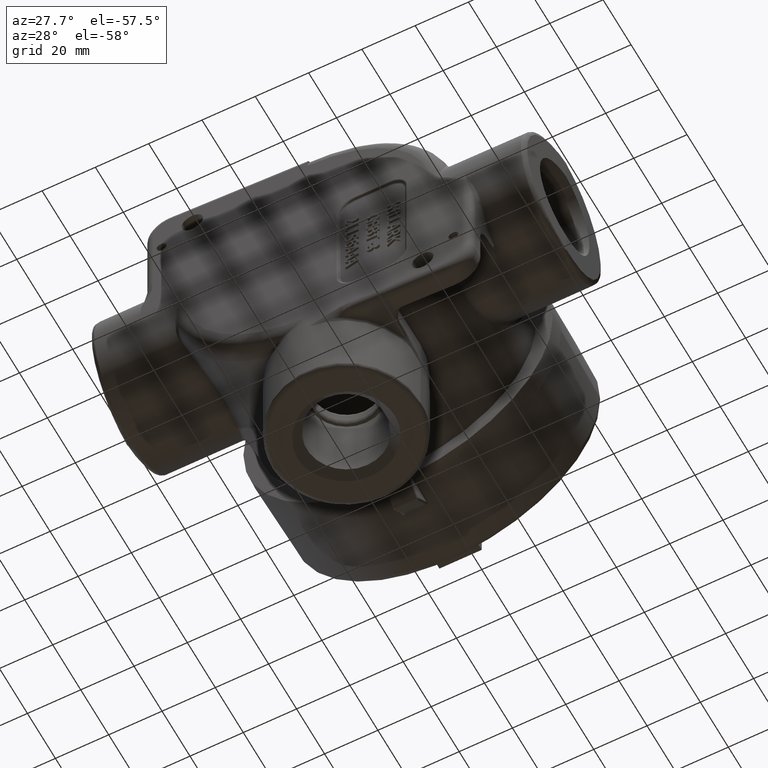
[diagram: clean part render]
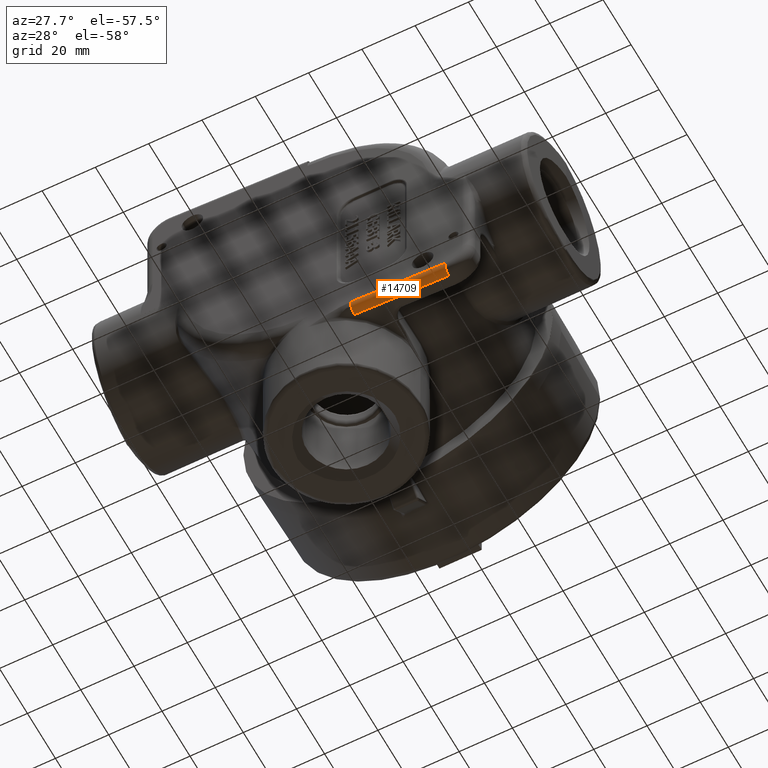
[diagram: same view with one face highlighted and labeled with its STEP entity id]
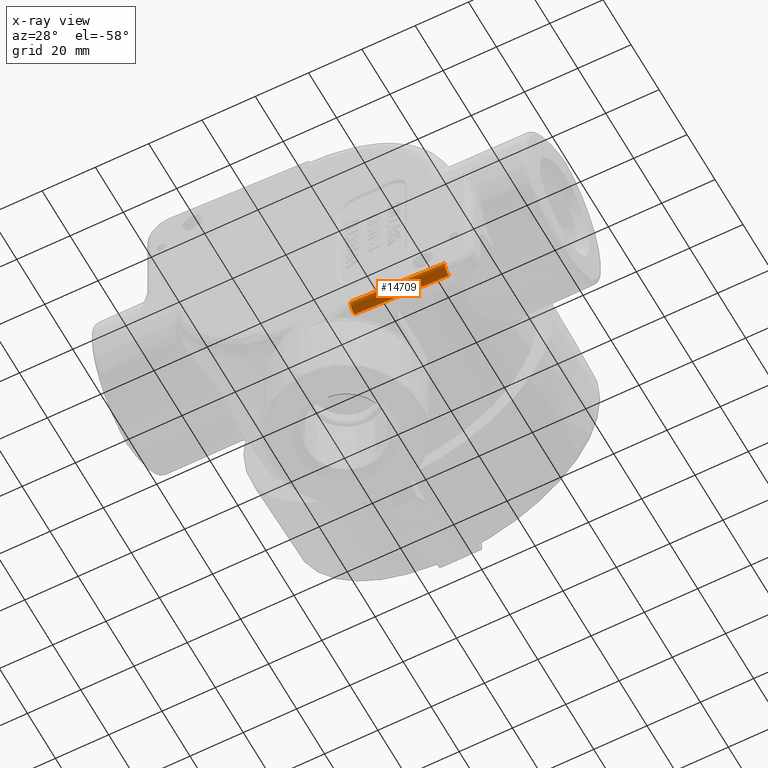
[diagram: x-ray of the same camera — body ghosted, the highlighted face saturated]
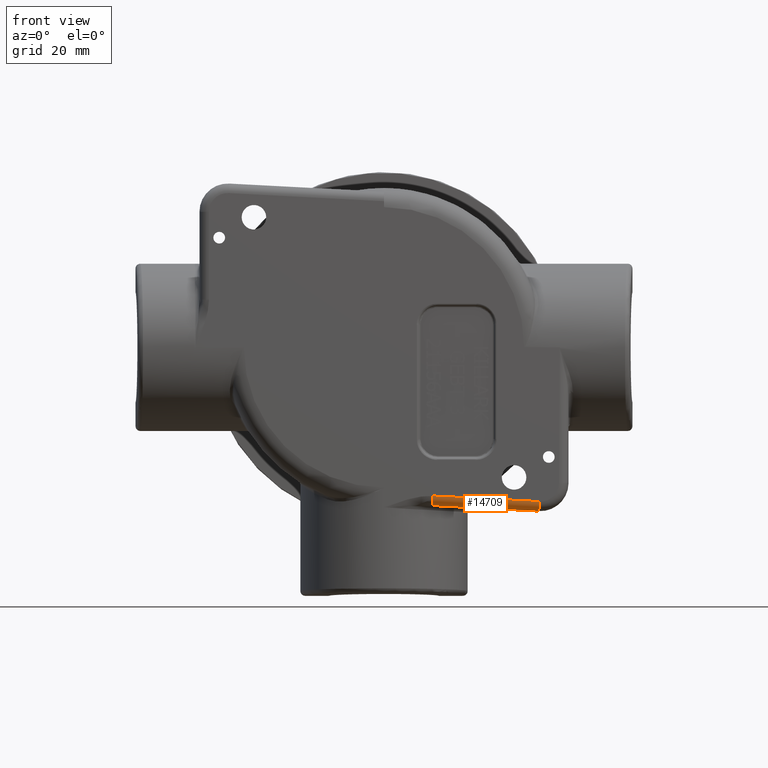
[diagram: same view with one face highlighted and labeled with its STEP entity id]
A machine part, auxiliary view. The second image highlights one B-rep face of the part: STEP entity #14709.
The next image is the same camera in x-ray: the body ghosted, the highlighted face saturated — about 0% of this face is hidden behind the body in this view.
A second angle (front view) of the same face is appended — the face is thin or edge-on in the first view.
In plain terms, the highlighted cylindrical surface (edge-blend (fillet) strip) has radius 3.175 mm, axis along (0.9986, 0, -0.0523).
Its self-contained STEP definition (entity closure, byte-faithful):
#711=CYLINDRICAL_SURFACE('',#15865,0.125);
#1091=LINE('',#48062,#2366);
#1092=LINE('',#48063,#2367);
#2366=VECTOR('',#17739,0.393700787401575);
#2367=VECTOR('',#17740,0.393700787401575);
#3577=FACE_OUTER_BOUND('',#4461,.T.);
#4461=EDGE_LOOP('',(#11134,#11135,#11136,#11137));
#5900=CIRCLE('',#15864,0.125);
#5901=CIRCLE('',#15866,0.125);
#6471=VERTEX_POINT('',#26061);
#6572=VERTEX_POINT('',#48047);
#6573=VERTEX_POINT('',#48059);
#6574=VERTEX_POINT('',#48060);
#8278=EDGE_CURVE('',#6471,#6572,#5900,.T.);
#8280=EDGE_CURVE('',#6573,#6574,#5901,.T.);
#8281=EDGE_CURVE('',#6574,#6572,#1091,.T.);
#8282=EDGE_CURVE('',#6471,#6573,#1092,.T.);
#11134=ORIENTED_EDGE('',*,*,#8280,.T.);
#11135=ORIENTED_EDGE('',*,*,#8281,.T.);
#11136=ORIENTED_EDGE('',*,*,#8278,.F.);
#11137=ORIENTED_EDGE('',*,*,#8282,.T.);
#14709=ADVANCED_FACE('',(#3577),#711,.T.);
#15864=AXIS2_PLACEMENT_3D('',#48048,#17733,#17734);
#15865=AXIS2_PLACEMENT_3D('',#48058,#17735,#17736);
#15866=AXIS2_PLACEMENT_3D('',#48061,#17737,#17738);
#17733=DIRECTION('center_axis',(-0.998629534754574,0.,0.0523359562429456));
#17734=DIRECTION('ref_axis',(-0.0523359562429456,0.,-0.998629534754574));
#17735=DIRECTION('center_axis',(0.998629534754574,0.,-0.0523359562429438));
#17736=DIRECTION('ref_axis',(-0.0370071095592681,-0.707106781186552,-0.706137715918122));
#17737=DIRECTION('center_axis',(-0.998629534754574,0.,0.0523359562429499));
#17738=DIRECTION('ref_axis',(-0.0523359562429499,0.,-0.998629534754574));
#17739=DIRECTION('',(-0.998629534754574,0.,0.0523359562429438));
#17740=DIRECTION('',(0.998629534754574,0.,-0.0523359562429438));
#26061=CARTESIAN_POINT('',(0.629222931454811,-3.375,-2.06874138438328));
#48047=CARTESIAN_POINT('',(0.635764925985179,-3.5,-1.94391269253896));
#48048=CARTESIAN_POINT('Origin',(0.635764925985179,-3.375,-1.94391269253896));
#48058=CARTESIAN_POINT('Origin',(-0.575151878791027,-3.375,-1.88045123190412));
#48059=CARTESIAN_POINT('',(2.02463569619011,-3.375,-2.14187186856627));
#48060=CARTESIAN_POINT('',(2.03117769072048,-3.5,-2.01704317672195));
#48061=CARTESIAN_POINT('Origin',(2.03117769072048,-3.375,-2.01704317672195));
#48062=CARTESIAN_POINT('',(-0.575151878791027,-3.5,-1.88045123190412));
#48063=CARTESIAN_POINT('',(-0.581693873321395,-3.375,-2.00527992374845));